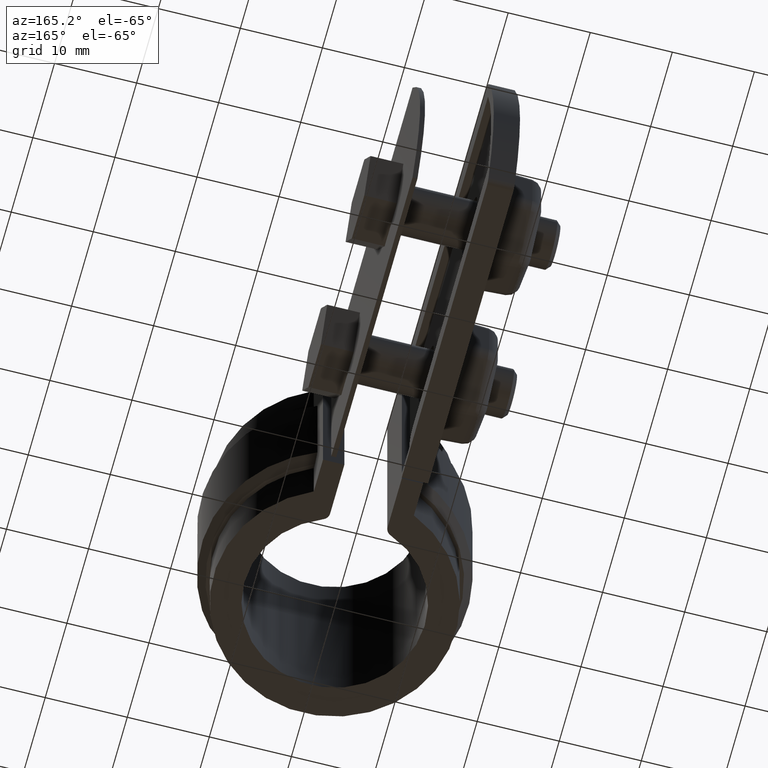
[diagram: clean part render]
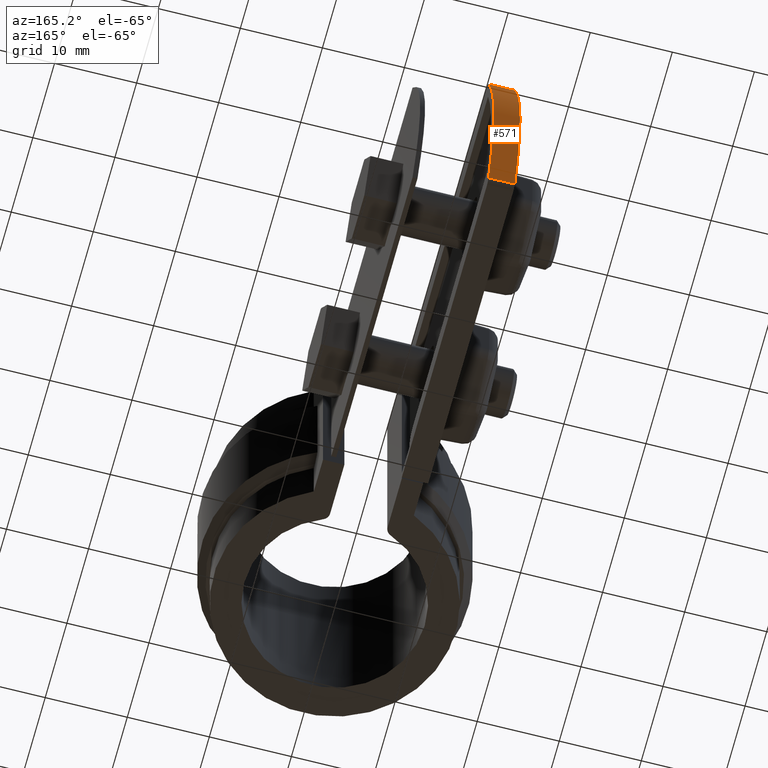
[diagram: same view with one face highlighted and labeled with its STEP entity id]
A machine part, auxiliary view. The second image highlights one B-rep face of the part: STEP entity #571.
In plain terms, the highlighted cylindrical surface (partial cylindrical patch) has radius 36.4 mm, axis along (1, 0, -0).
Its self-contained STEP definition (entity closure, byte-faithful):
#571 = ADVANCED_FACE( '', ( #1154 ), #1155, .T. );
#1154 = FACE_OUTER_BOUND( '', #2530, .T. );
#1155 = CYLINDRICAL_SURFACE( '', #2531, 36.4000000000000 );
#2530 = EDGE_LOOP( '', ( #5574, #5575, #5576, #5577 ) );
#2531 = AXIS2_PLACEMENT_3D( '', #5578, #5579, #5580 );
#5574 = ORIENTED_EDGE( '', *, *, #7065, .T. );
#5575 = ORIENTED_EDGE( '', *, *, #7217, .T. );
#5576 = ORIENTED_EDGE( '', *, *, #6896, .F. );
#5577 = ORIENTED_EDGE( '', *, *, #7218, .T. );
#5578 = CARTESIAN_POINT( '', ( -3.50000000000003, 23.6997530837310, -12.4999999999987 ) );
#5579 = DIRECTION( '', ( 1.00000000000000, 1.51901127710121E-016, -6.32865840457735E-019 ) );
#5580 = DIRECTION( '', ( -1.40493334921679E-016, 0.926467966726517, 0.376373626373626 ) );
#6896 = EDGE_CURVE( '', #8076, #8077, #8078, .T. );
#7065 = EDGE_CURVE( '', #8412, #8410, #8413, .T. );
#7217 = EDGE_CURVE( '', #8410, #8077, #8631, .T. );
#7218 = EDGE_CURVE( '', #8076, #8412, #8632, .F. );
#8076 = VERTEX_POINT( '', #11086 );
#8077 = VERTEX_POINT( '', #11087 );
#8078 = CIRCLE( '', #11088, 36.4000000000000 );
#8410 = VERTEX_POINT( '', #11569 );
#8412 = VERTEX_POINT( '', #11571 );
#8413 = CIRCLE( '', #11572, 36.4000000000000 );
#8631 = LINE( '', #11890, #11891 );
#8632 = LINE( '', #11892, #11893 );
#11086 = CARTESIAN_POINT( '', ( -6.70000000000003, 57.6766402865315, 0.558757062148157 ) );
#11087 = CARTESIAN_POINT( '', ( -6.70000000000003, 57.6766402865315, -25.5587570621456 ) );
#11088 = AXIS2_PLACEMENT_3D( '', #12928, #12929, #12930 );
#11569 = CARTESIAN_POINT( '', ( -3.50000000000003, 57.6766402865315, -25.5587570621456 ) );
#11571 = CARTESIAN_POINT( '', ( -3.50000000000003, 57.6766402865315, 0.558757062148157 ) );
#11572 = AXIS2_PLACEMENT_3D( '', #13137, #13138, #13139 );
#11890 = CARTESIAN_POINT( '', ( -3.50000000000004, 57.6766402865315, -25.5587570621456 ) );
#11891 = VECTOR( '', #13393, 1000.00000000000 );
#11892 = CARTESIAN_POINT( '', ( -3.50000000000004, 57.6766402865315, 0.558757062148160 ) );
#11893 = VECTOR( '', #13394, 1000.00000000000 );
#12928 = CARTESIAN_POINT( '', ( -6.70000000000003, 23.6997530837310, -12.4999999999987 ) );
#12929 = DIRECTION( '', ( -1.00000000000000, 8.63850640449354E-017, 6.32865840457794E-019 ) );
#12930 = DIRECTION( '', ( 6.32865840457775E-019, -2.22044604925031E-016, 1.00000000000000 ) );
#13137 = CARTESIAN_POINT( '', ( -3.50000000000003, 23.6997530837310, -12.4999999999987 ) );
#13138 = DIRECTION( '', ( -1.00000000000000, 8.63850640449354E-017, 6.32865840457794E-019 ) );
#13139 = DIRECTION( '', ( 6.32865840457775E-019, -2.22044604925031E-016, 1.00000000000000 ) );
#13393 = DIRECTION( '', ( -1.00000000000000, -1.51901127710121E-016, 6.32865840457733E-019 ) );
#13394 = DIRECTION( '', ( -1.00000000000000, -1.51901127710121E-016, 6.32865840457733E-019 ) );